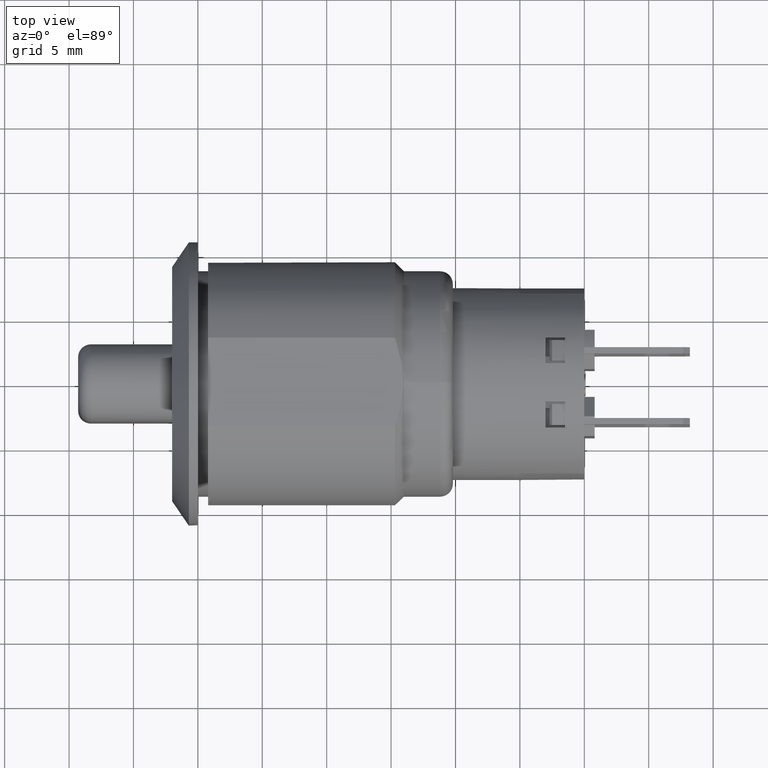
[diagram: clean part render]
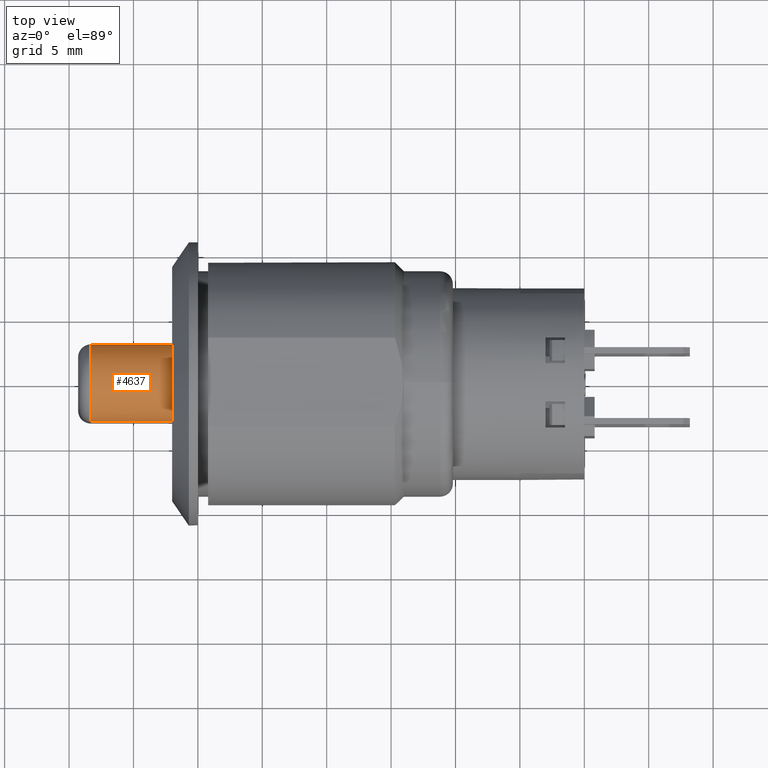
[diagram: same view with one face highlighted and labeled with its STEP entity id]
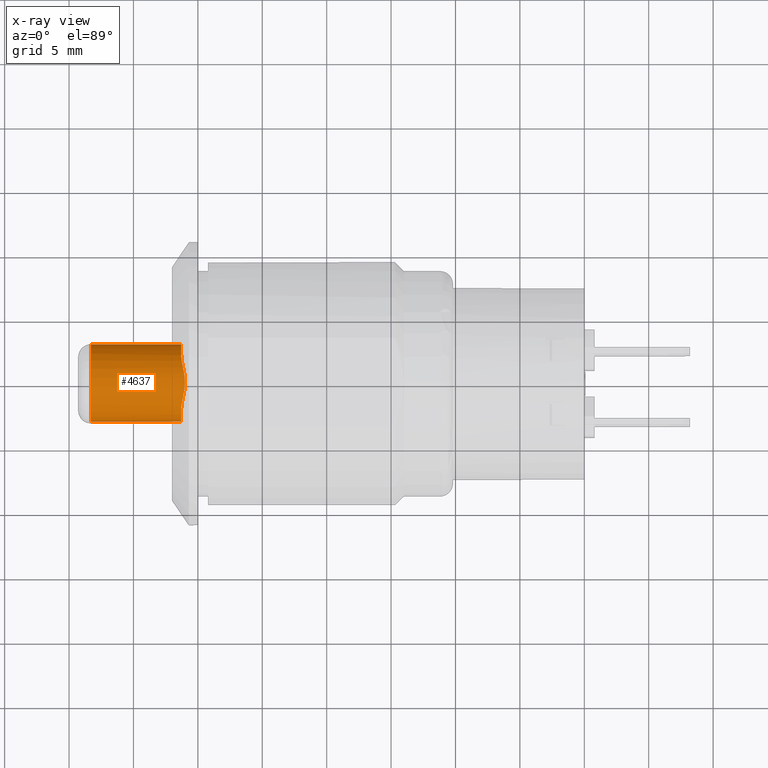
[diagram: x-ray of the same camera — body ghosted, the highlighted face saturated]
A machine part, top view. The second image highlights one B-rep face of the part: STEP entity #4637.
The next image is the same camera in x-ray: the body ghosted, the highlighted face saturated — about 0% of this face is hidden behind the body in this view.
In plain terms, the highlighted cylindrical surface (partial cylindrical patch) has radius 3 mm, axis along (-1, 0, 0).
Its self-contained STEP definition (entity closure, byte-faithful):
#97=CYLINDRICAL_SURFACE('',#4930,0.118110236220472);
#145=CIRCLE('',#4914,0.118110236220472);
#149=CIRCLE('',#4920,0.118110236220472);
#156=CIRCLE('',#4931,0.118110236220472);
#310=B_SPLINE_CURVE_WITH_KNOTS('',3,(#6658,#6659,#6660,#6661,#6662,#6663,
#6664,#6665),.UNSPECIFIED.,.F.,.F.,(4,1,1,1,1,4),(-0.787949484498504,-0.63020962396806,
-0.551339693702838,-0.472469763437616,-0.393599833172394,-0.235859972641951),
 .UNSPECIFIED.);
#388=FACE_OUTER_BOUND('',#646,.T.);
#646=EDGE_LOOP('',(#3089,#3090,#3091,#3092,#3093,#3094));
#937=LINE('',#6752,#1407);
#940=LINE('',#6758,#1410);
#1407=VECTOR('',#5365,0.393700787401575);
#1410=VECTOR('',#5370,0.393700787401575);
#1877=VERTEX_POINT('',#6598);
#1879=VERTEX_POINT('',#6604);
#1882=VERTEX_POINT('',#6657);
#1884=VERTEX_POINT('',#6677);
#1890=VERTEX_POINT('',#6751);
#1892=VERTEX_POINT('',#6757);
#2349=EDGE_CURVE('',#1877,#1879,#145,.T.);
#2352=EDGE_CURVE('',#1879,#1882,#310,.T.);
#2355=EDGE_CURVE('',#1882,#1884,#149,.T.);
#2366=EDGE_CURVE('',#1884,#1890,#937,.T.);
#2369=EDGE_CURVE('',#1877,#1892,#940,.T.);
#2370=EDGE_CURVE('',#1890,#1892,#156,.T.);
#3089=ORIENTED_EDGE('',*,*,#2349,.F.);
#3090=ORIENTED_EDGE('',*,*,#2369,.T.);
#3091=ORIENTED_EDGE('',*,*,#2370,.F.);
#3092=ORIENTED_EDGE('',*,*,#2366,.F.);
#3093=ORIENTED_EDGE('',*,*,#2355,.F.);
#3094=ORIENTED_EDGE('',*,*,#2352,.F.);
#4637=ADVANCED_FACE('',(#388),#97,.T.);
#4914=AXIS2_PLACEMENT_3D('',#6612,#5331,#5332);
#4920=AXIS2_PLACEMENT_3D('',#6678,#5343,#5344);
#4930=AXIS2_PLACEMENT_3D('',#6756,#5368,#5369);
#4931=AXIS2_PLACEMENT_3D('',#6759,#5371,#5372);
#5331=DIRECTION('center_axis',(1.,0.,0.));
#5332=DIRECTION('ref_axis',(0.,0.979970092115879,0.199144717626141));
#5343=DIRECTION('center_axis',(1.,0.,0.));
#5344=DIRECTION('ref_axis',(0.,-0.814740723383157,0.579825451029092));
#5365=DIRECTION('',(-1.,0.,0.));
#5368=DIRECTION('center_axis',(-1.,0.,0.));
#5369=DIRECTION('ref_axis',(0.,-1.,3.70074341541719E-16));
#5370=DIRECTION('',(-1.,0.,0.));
#5371=DIRECTION('center_axis',(-1.,0.,0.));
#5372=DIRECTION('ref_axis',(0.,5.30886606509382E-16,1.));
#6598=CARTESIAN_POINT('',(-0.0511811023622047,0.118110236220472,0.177165354330709));
#6604=CARTESIAN_POINT('',(-0.0511811023622047,0.0835684986546267,0.26062992125984));
#6612=CARTESIAN_POINT('Origin',(-0.0511811023622047,6.01006558606138E-17,
0.177165354330709));
#6657=CARTESIAN_POINT('',(-0.0511811023622047,-0.0835684986546241,0.260629921259843));
#6658=CARTESIAN_POINT('Ctrl Pts',(-0.0511811023622047,0.0835684986546266,
0.26062992125984));
#6659=CARTESIAN_POINT('Ctrl Pts',(-0.0511811023622052,0.0709220840745953,
0.27329208340482));
#6660=CARTESIAN_POINT('Ctrl Pts',(-0.0455594737638831,0.0479116588087246,
0.287595194401577));
#6661=CARTESIAN_POINT('Ctrl Pts',(-0.0392183351397978,0.0134921221478024,
0.29550034914485));
#6662=CARTESIAN_POINT('Ctrl Pts',(-0.0392165812817568,-0.0134036022962633,
0.295496906664123));
#6663=CARTESIAN_POINT('Ctrl Pts',(-0.0455789687155656,-0.047917436294889,
0.287623399283209));
#6664=CARTESIAN_POINT('Ctrl Pts',(-0.0511811023622047,-0.0710297470863998,
0.273184286328908));
#6665=CARTESIAN_POINT('Ctrl Pts',(-0.0511811023622047,-0.0835684986546241,
0.260629921259843));
#6677=CARTESIAN_POINT('',(-0.0511811023622047,-0.118110236220472,0.177165354330709));
#6678=CARTESIAN_POINT('Origin',(-0.0511811023622047,6.01006558606138E-17,
0.177165354330709));
#6751=CARTESIAN_POINT('',(-0.326771653543307,-0.118110236220472,0.177165354330709));
#6752=CARTESIAN_POINT('',(-0.031496062992126,-0.118110236220472,0.177165354330709));
#6756=CARTESIAN_POINT('Origin',(-0.031496062992126,6.01006558606138E-17,
0.177165354330709));
#6757=CARTESIAN_POINT('',(-0.326771653543307,0.118110236220472,0.177165354330709));
#6758=CARTESIAN_POINT('',(-0.031496062992126,0.118110236220472,0.177165354330709));
#6759=CARTESIAN_POINT('Origin',(-0.326771653543307,6.01006558606138E-17,
0.177165354330709));